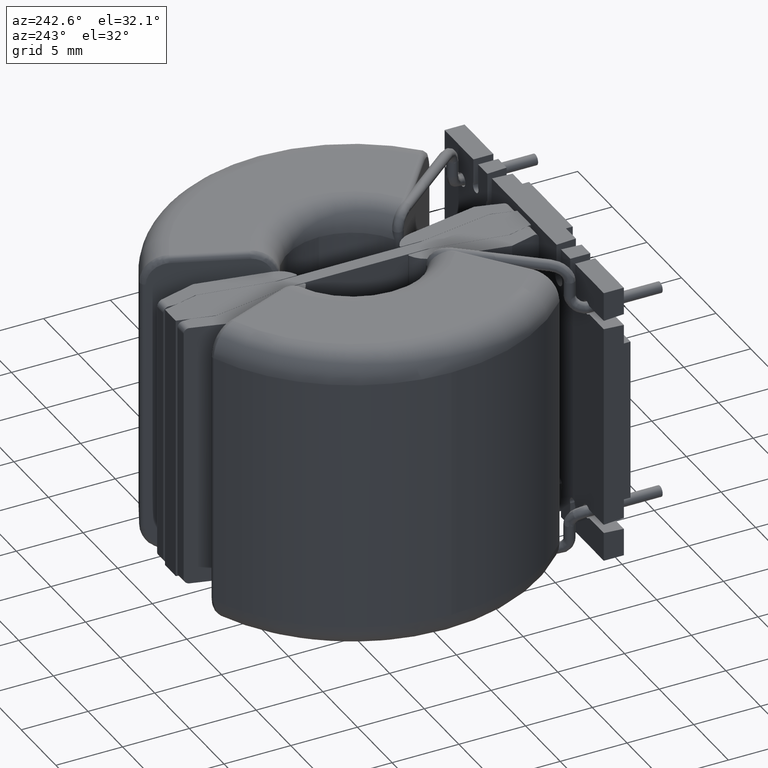
[diagram: clean part render]
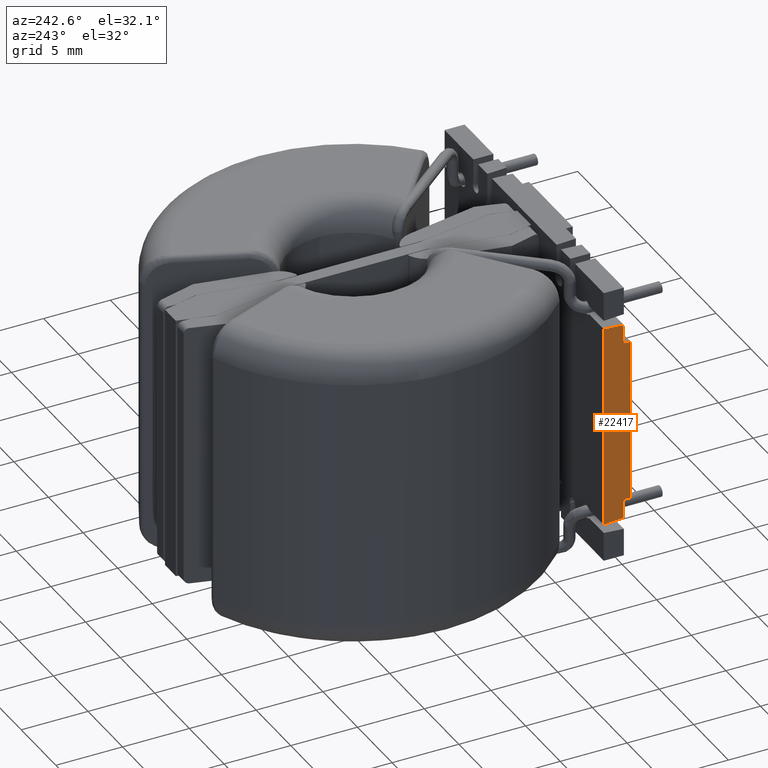
[diagram: same view with one face highlighted and labeled with its STEP entity id]
A machine part, auxiliary view. The second image highlights one B-rep face of the part: STEP entity #22417.
In plain terms, the highlighted planar face has unit normal (-1, 0, 0).
Its self-contained STEP definition (entity closure, byte-faithful):
#198 = DIRECTION ( 'NONE',  ( 0.0000000000000000000, 0.0000000000000000000, 1.000000000000000000 ) ) ;
#338 = VECTOR ( 'NONE', #11084, 1000.000000000000000 ) ;
#886 = VERTEX_POINT ( 'NONE', #3909 ) ;
#2018 = ORIENTED_EDGE ( 'NONE', *, *, #25980, .T. ) ;
#2286 = FACE_OUTER_BOUND ( 'NONE', #11630, .T. ) ;
#2783 = EDGE_CURVE ( 'NONE', #26832, #21043, #14860, .T. ) ;
#3130 = PLANE ( 'NONE',  #13477 ) ;
#3164 = ORIENTED_EDGE ( 'NONE', *, *, #4021, .T. ) ;
#3909 = CARTESIAN_POINT ( 'NONE',  ( -11.50000000000000000, -14.34999999999999964, 7.574999999999998401 ) ) ;
#4021 = EDGE_CURVE ( 'NONE', #21043, #21725, #16588, .T. ) ;
#4136 = VECTOR ( 'NONE', #198, 1000.000000000000000 ) ;
#5044 = CARTESIAN_POINT ( 'NONE',  ( -11.50000000000000000, -14.84999999999999964, -6.120000000000000107 ) ) ;
#5216 = DIRECTION ( 'NONE',  ( 0.0000000000000000000, 0.0000000000000000000, 1.000000000000000000 ) ) ;
#5251 = LINE ( 'NONE', #15505, #5914 ) ;
#5463 = CARTESIAN_POINT ( 'NONE',  ( -11.50000000000000000, -14.84999999999999964, -10.50000000000000000 ) ) ;
#5678 = VECTOR ( 'NONE', #21963, 1000.000000000000000 ) ;
#5914 = VECTOR ( 'NONE', #13296, 1000.000000000000000 ) ;
#6458 = EDGE_CURVE ( 'NONE', #23730, #8298, #19992, .T. ) ;
#7422 = ORIENTED_EDGE ( 'NONE', *, *, #6458, .F. ) ;
#7602 = ORIENTED_EDGE ( 'NONE', *, *, #2783, .T. ) ;
#7835 = CARTESIAN_POINT ( 'NONE',  ( -11.50000000000000000, -14.84999999999999964, 6.120000000000001883 ) ) ;
#8298 = VERTEX_POINT ( 'NONE', #10509 ) ;
#10509 = CARTESIAN_POINT ( 'NONE',  ( -11.50000000000000000, -14.84999999999999964, 6.119999999999995666 ) ) ;
#10612 = EDGE_CURVE ( 'NONE', #23730, #886, #17877, .T. ) ;
#11084 = DIRECTION ( 'NONE',  ( -0.0000000000000000000, 0.9977851578566089286, 0.06651901052377411083 ) ) ;
#11289 = LINE ( 'NONE', #5044, #5678 ) ;
#11630 = EDGE_LOOP ( 'NONE', ( #2018, #11866, #7602, #3164, #19870, #15235, #7422, #26891 ) ) ;
#11695 = DIRECTION ( 'NONE',  ( 0.0000000000000000000, -1.000000000000000000, 0.0000000000000000000 ) ) ;
#11866 = ORIENTED_EDGE ( 'NONE', *, *, #24827, .F. ) ;
#11906 = VECTOR ( 'NONE', #21265, 1000.000000000000000 ) ;
#12549 = LINE ( 'NONE', #12607, #11906 ) ;
#12607 = CARTESIAN_POINT ( 'NONE',  ( -11.50000000000000000, -12.84999999999999964, -10.50000000000000000 ) ) ;
#13296 = DIRECTION ( 'NONE',  ( 0.0000000000000000000, 0.0000000000000000000, 1.000000000000000000 ) ) ;
#13477 = AXIS2_PLACEMENT_3D ( 'NONE', #5463, #13799, #26315 ) ;
#13799 = DIRECTION ( 'NONE',  ( -1.000000000000000000, 0.0000000000000000000, 0.0000000000000000000 ) ) ;
#14004 = CARTESIAN_POINT ( 'NONE',  ( -11.50000000000000000, -14.34999999999999964, -7.575000000000000178 ) ) ;
#14860 = LINE ( 'NONE', #14004, #20781 ) ;
#15235 = ORIENTED_EDGE ( 'NONE', *, *, #25703, .T. ) ;
#15324 = CARTESIAN_POINT ( 'NONE',  ( -11.50000000000000000, -14.34999999999999964, 6.120000000000000107 ) ) ;
#15400 = VECTOR ( 'NONE', #11695, 1000.000000000000000 ) ;
#15505 = CARTESIAN_POINT ( 'NONE',  ( -11.50000000000000000, -14.84999999999999964, -10.50000000000000000 ) ) ;
#15668 = CARTESIAN_POINT ( 'NONE',  ( -11.50000000000000000, -12.84999999999999964, 7.674999999999998934 ) ) ;
#16555 = VECTOR ( 'NONE', #5216, 1000.000000000000000 ) ;
#16588 = LINE ( 'NONE', #22852, #4136 ) ;
#17877 = LINE ( 'NONE', #20006, #16555 ) ;
#19474 = CARTESIAN_POINT ( 'NONE',  ( -11.50000000000000000, -12.84999999999999964, 7.674999999999998934 ) ) ;
#19718 = VERTEX_POINT ( 'NONE', #19474 ) ;
#19870 = ORIENTED_EDGE ( 'NONE', *, *, #24591, .F. ) ;
#19992 = LINE ( 'NONE', #7835, #15400 ) ;
#20006 = CARTESIAN_POINT ( 'NONE',  ( -11.50000000000000000, -14.34999999999999964, -10.50000000000000000 ) ) ;
#20567 = DIRECTION ( 'NONE',  ( -0.0000000000000000000, -0.9977851578566089286, 0.06651901052377411083 ) ) ;
#20781 = VECTOR ( 'NONE', #20567, 1000.000000000000000 ) ;
#21043 = VERTEX_POINT ( 'NONE', #25431 ) ;
#21265 = DIRECTION ( 'NONE',  ( 0.0000000000000000000, 0.0000000000000000000, 1.000000000000000000 ) ) ;
#21725 = VERTEX_POINT ( 'NONE', #23791 ) ;
#21963 = DIRECTION ( 'NONE',  ( 0.0000000000000000000, 1.000000000000000000, -0.0000000000000000000 ) ) ;
#22320 = LINE ( 'NONE', #15668, #338 ) ;
#22417 = ADVANCED_FACE ( 'NONE', ( #2286 ), #3130, .T. ) ;
#22852 = CARTESIAN_POINT ( 'NONE',  ( -11.50000000000000000, -14.34999999999999964, -10.50000000000000000 ) ) ;
#23368 = CARTESIAN_POINT ( 'NONE',  ( -11.50000000000000000, -14.84999999999999964, -6.120000000000000107 ) ) ;
#23730 = VERTEX_POINT ( 'NONE', #15324 ) ;
#23791 = CARTESIAN_POINT ( 'NONE',  ( -11.50000000000000000, -14.34999999999999964, -6.120000000000000107 ) ) ;
#24591 = EDGE_CURVE ( 'NONE', #24902, #21725, #11289, .T. ) ;
#24827 = EDGE_CURVE ( 'NONE', #26832, #19718, #12549, .T. ) ;
#24902 = VERTEX_POINT ( 'NONE', #23368 ) ;
#25431 = CARTESIAN_POINT ( 'NONE',  ( -11.50000000000000000, -14.34999999999999964, -7.575000000000000178 ) ) ;
#25703 = EDGE_CURVE ( 'NONE', #24902, #8298, #5251, .T. ) ;
#25733 = CARTESIAN_POINT ( 'NONE',  ( -11.50000000000000000, -12.84999999999999964, -7.675000000000000711 ) ) ;
#25980 = EDGE_CURVE ( 'NONE', #886, #19718, #22320, .T. ) ;
#26315 = DIRECTION ( 'NONE',  ( 0.0000000000000000000, 0.0000000000000000000, 1.000000000000000000 ) ) ;
#26832 = VERTEX_POINT ( 'NONE', #25733 ) ;
#26891 = ORIENTED_EDGE ( 'NONE', *, *, #10612, .T. ) ;